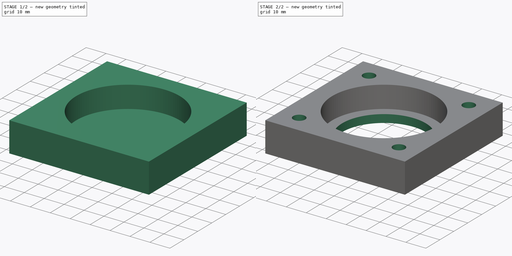
[diagram: build sequence overview — one tinted view per stage of 2, left to right]
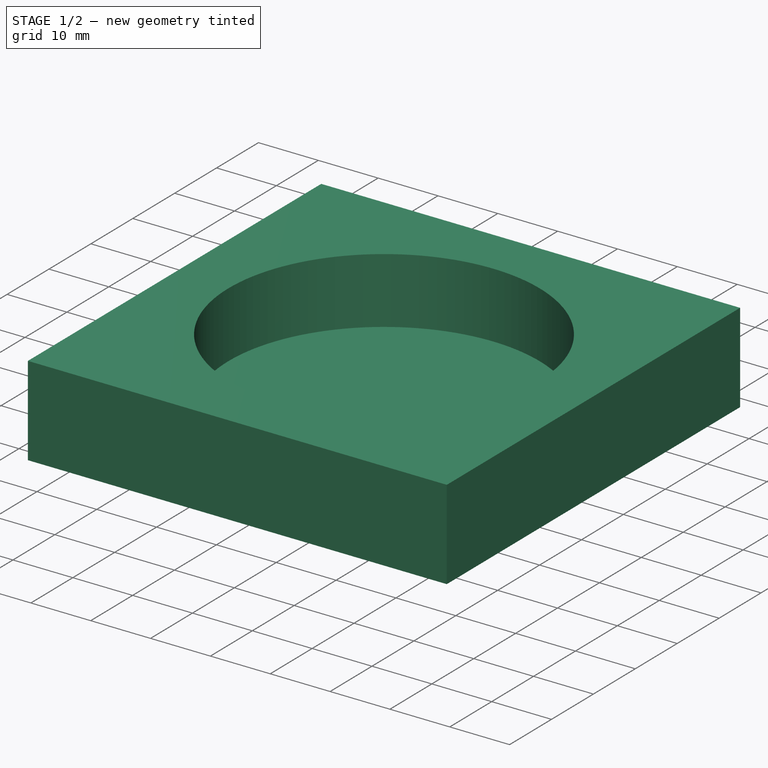
[diagram: stage 1 of 2 — iso view after this stage's code; geometry added in this stage tinted green]
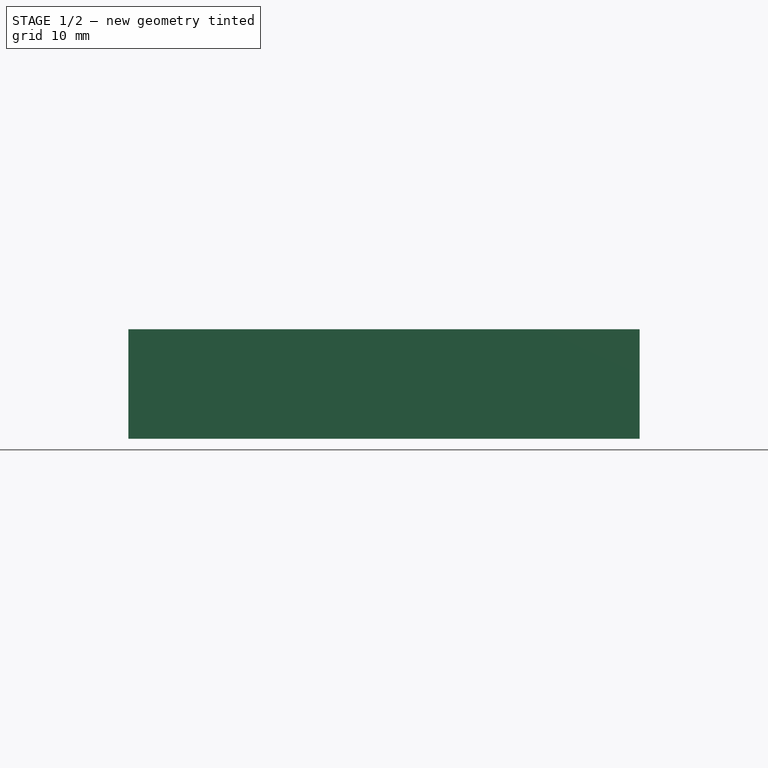
[diagram: stage 1 of 2 — front view after this stage's code; geometry added in this stage tinted green]
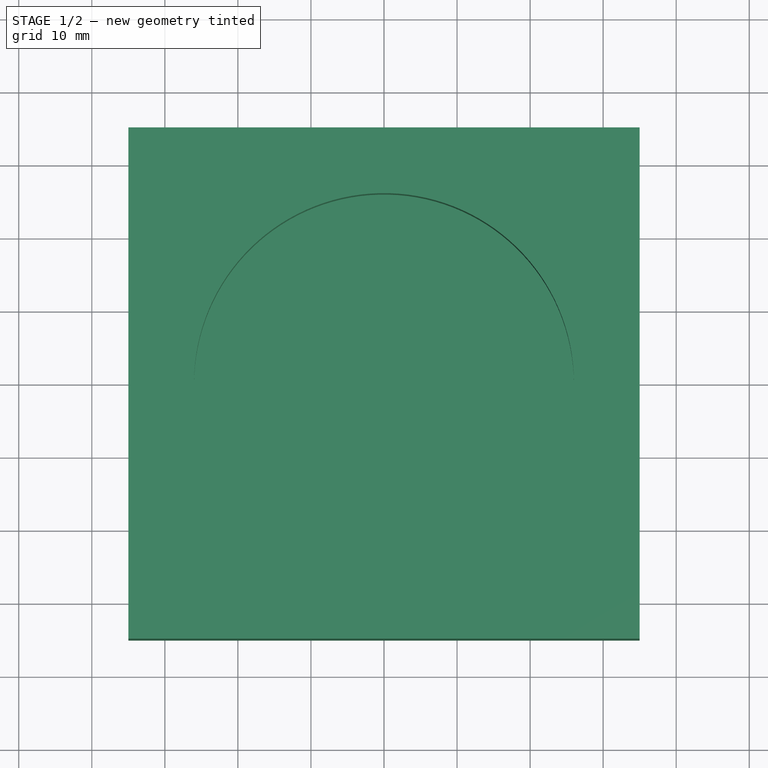
[diagram: stage 1 of 2 — top view after this stage's code; geometry added in this stage tinted green]
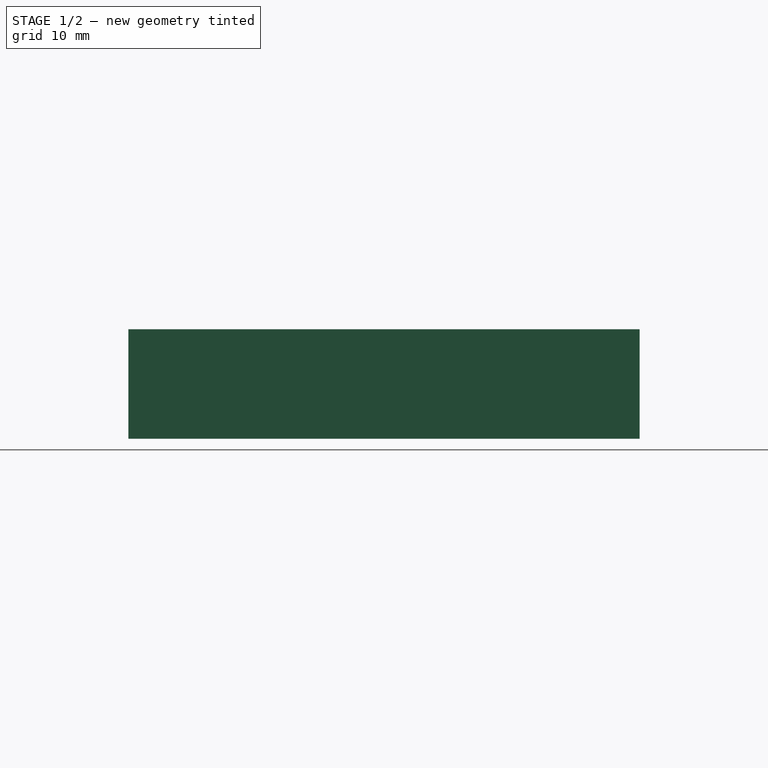
[diagram: stage 1 of 2 — right view after this stage's code; geometry added in this stage tinted green]
FCSTD DOCUMENT  (FreeCAD 0.21R33771 (Git))
Label: FlangiaCuscinettoAlberoMandrino
License: All rights reserved
LicenseURL: http://en.wikipedia.org/wiki/All_rights_reserved
objects: Sketcher::SketchObject×3, PartDesign::Pocket×2, PartDesign::CoordinateSystem×1, PartDesign::Pad×1, PartDesign::Body×1
note: 11 computed .brp shape members not serialized (recipe doc carries the construction recipe); baked Part::Feature solids carry a one-line shape summary decoded from their .brp

FEATURE [Sketcher::SketchObject] Sketch
  FullyConstrained = true
  MapMode = 5
  Support = -> [XY_Plane]
  sketch-geometry (4):
    g0: LineSegment StartX=-35 StartY=35 StartZ=0 EndX=35 EndY=35 EndZ=0
    g1: LineSegment StartX=35 StartY=35 StartZ=0 EndX=35 EndY=-35 EndZ=0
    g2: LineSegment StartX=35 StartY=-35 StartZ=0 EndX=-35 EndY=-35 EndZ=0
    g3: LineSegment StartX=-35 StartY=-35 StartZ=0 EndX=-35 EndY=35 EndZ=0
  constraints (12):
    c: Coincident(g0,g1)
    c: Coincident(g1,g2)
    c: Coincident(g2,g3)
    c: Coincident(g3,g0)
    c: Horizontal(g0)
    c: Horizontal(g2)
    c: Vertical(g1)
    c: Vertical(g3)
    c: DistanceY(g1,g-1) = 35
    c: DistanceY(g3,g3) = 70
    c: DistanceX(g0,g0) = 70
    c: DistanceX(g2,g-1) = 35
FEATURE [Sketcher::SketchObject] Sketch002
  FullyConstrained = false
  MapMode = 5
  Placement = pos=(0,0,15) rot=(0,0,1;0rad)
  sketch-geometry (9):
    g0: LineSegment StartX=-42.5383 StartY=25 StartZ=0 EndX=54.8117 EndY=25 EndZ=0
    g1: LineSegment StartX=-43.6541 StartY=-25 StartZ=0 EndX=49.7908 EndY=-25 EndZ=0
    g2: LineSegment StartX=-25 StartY=39.9582 StartZ=0 EndX=-25 EndY=-42.6081 EndZ=0
    g3: LineSegment StartX=25 StartY=42.3292 StartZ=0 EndX=25 EndY=-40.795 EndZ=0
    g4: Circle CenterX=-25 CenterY=25 CenterZ=0 NormalX=0 NormalY=0 NormalZ=1 AngleXU=0 Radius=3
    g5: Circle CenterX=25 CenterY=25 CenterZ=0 NormalX=0 NormalY=0 NormalZ=1 AngleXU=0 Radius=3
    g6: Circle CenterX=25 CenterY=-25 CenterZ=0 NormalX=0 NormalY=0 NormalZ=1 AngleXU=0 Radius=3
    g7: Circle CenterX=-25 CenterY=-25 CenterZ=0 NormalX=0 NormalY=0 NormalZ=1 AngleXU=0 Radius=3
    g8: Circle CenterX=0 CenterY=0 CenterZ=0 NormalX=0 NormalY=0 NormalZ=1 AngleXU=0 Radius=21
  constraints (18):
    c: Horizontal(g0)
    c: Horizontal(g1)
    c: Vertical(g2)
    c: Vertical(g3)
    c: PointOnObject(g4,g2)
    c: PointOnObject(g5,g0)
    c: PointOnObject(g6,g1)
    c: PointOnObject(g7,g1)
    c: PointOnObject(g5,g3)
    c: PointOnObject(g6,g3)
    c: Equal(g4,g5)
    c: Equal(g5,g6)
    c: Equal(g6,g7)
    c: Radius(g4) = 3
    c: Symmetric(g4,g7,g-1)
    c: Symmetric(g4,g5,g-2)
    c: Coincident(g8,g-1)
    c: Radius(g8) = 21
FEATURE [PartDesign::CoordinateSystem] LCS_FlangiaCuscinettoMandrino
  AttacherType = Attacher::AttachEngine3D
FEATURE [PartDesign::Pad] Pad
  Direction = (0,0,1)
  Length = 15
  Length2 = 100
  Profile = -> Sketch
  Type = 0
FEATURE [Sketcher::SketchObject] Sketch001
  FullyConstrained = true
  MapMode = 5
  Placement = pos=(0,0,15) rot=(0,0,1;0rad)
  Support = -> [Pad]
  sketch-geometry (1):
    g0: Circle CenterX=0 CenterY=0 CenterZ=0 NormalX=0 NormalY=0 NormalZ=1 AngleXU=0 Radius=26
  constraints (2):
    c: Coincident(g0,g-1)
    c: Radius(g0) = 26
FEATURE [PartDesign::Pocket] Pocket
  BaseFeature = -> Pad
  Direction = (0,0,-1)
  Length = 11
  Length2 = 5
  Profile = -> Sketch001
  ReferenceAxis = -> Sketch001 [N_Axis]
  Type = 0
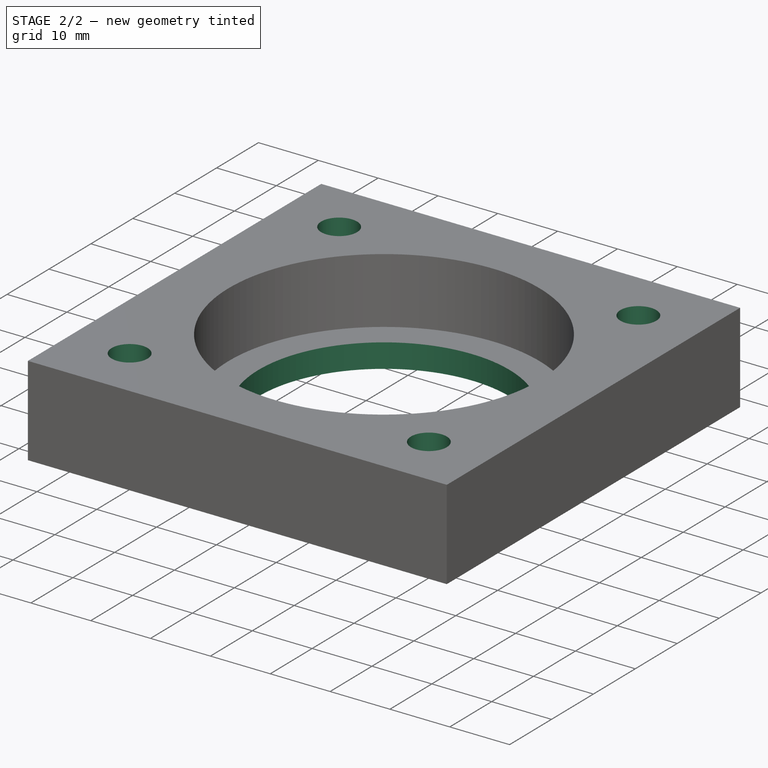
[diagram: stage 2 of 2 — iso view after this stage's code; geometry added in this stage tinted green]
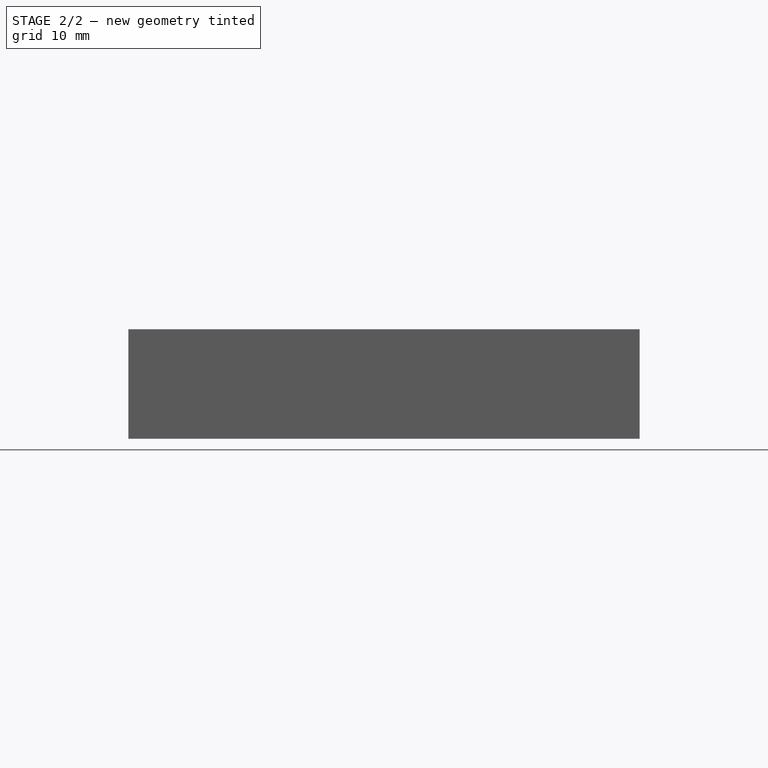
[diagram: stage 2 of 2 — front view after this stage's code; geometry added in this stage tinted green]
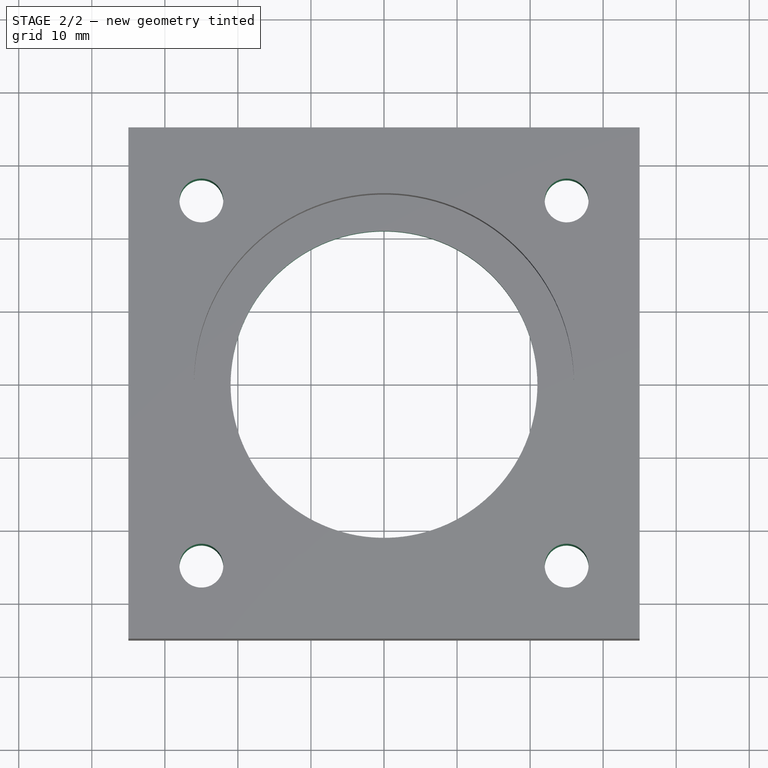
[diagram: stage 2 of 2 — top view after this stage's code; geometry added in this stage tinted green]
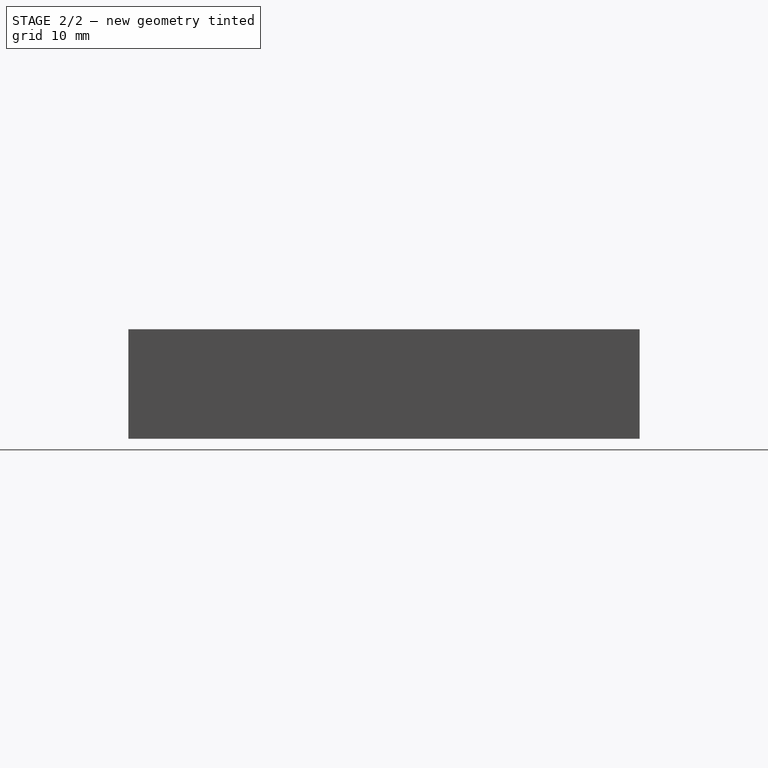
[diagram: stage 2 of 2 — right view after this stage's code; geometry added in this stage tinted green]
FEATURE [PartDesign::Pocket] Pocket001
  BaseFeature = -> Pocket
  Direction = (0,0,-1)
  Length = 5
  Length2 = 5
  Profile = -> Sketch002
  ReferenceAxis = -> Sketch002 [N_Axis]
  Type = 1
FEATURE [PartDesign::Body] Body
  Group = -> [Sketch,Pad,Sketch001,Sketch002,LCS_FlangiaCuscinettoMandrino,Pocket,Pocket001]
  Origin = -> Origin
  Tip = -> Pocket001
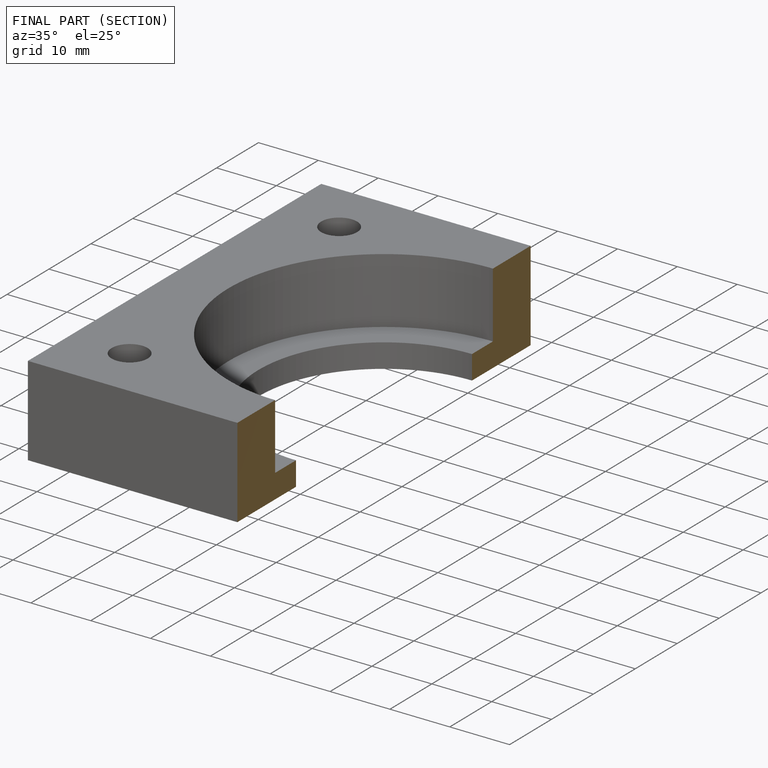
[diagram: finished part — half-section view (interior)]
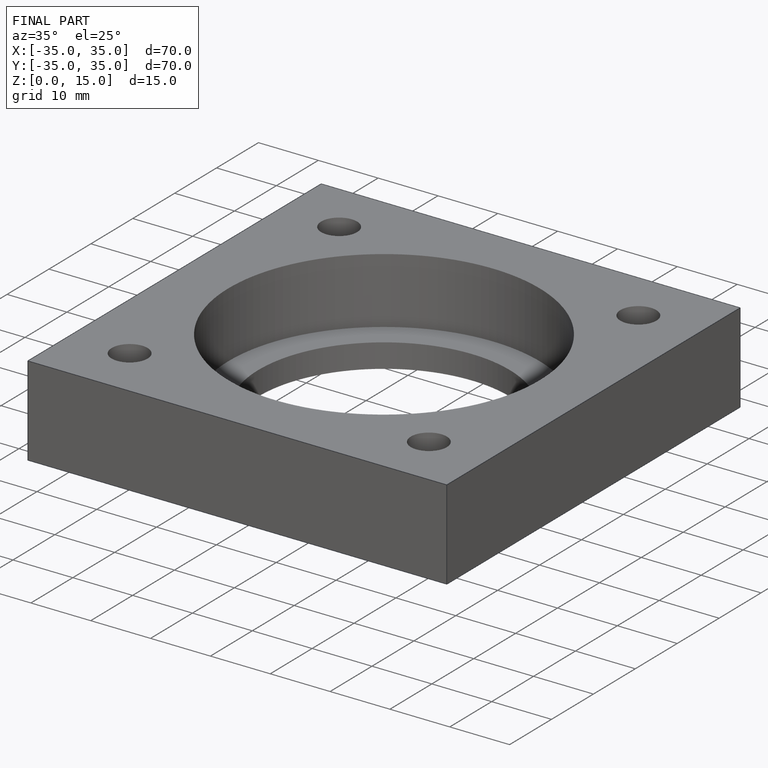
[diagram: finished part — iso view with bounding-box wireframe]
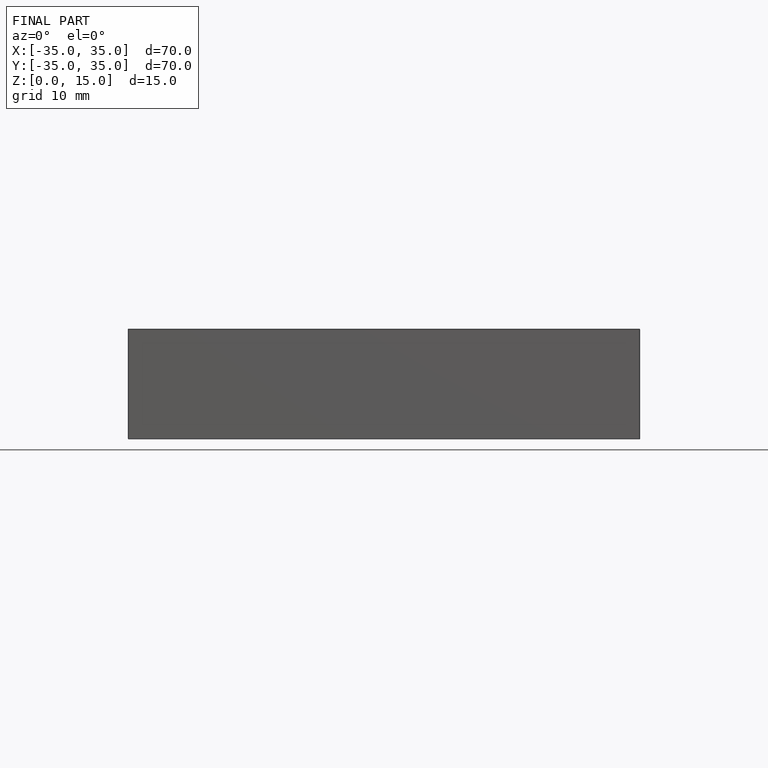
[diagram: finished part — front view with bounding-box wireframe]
